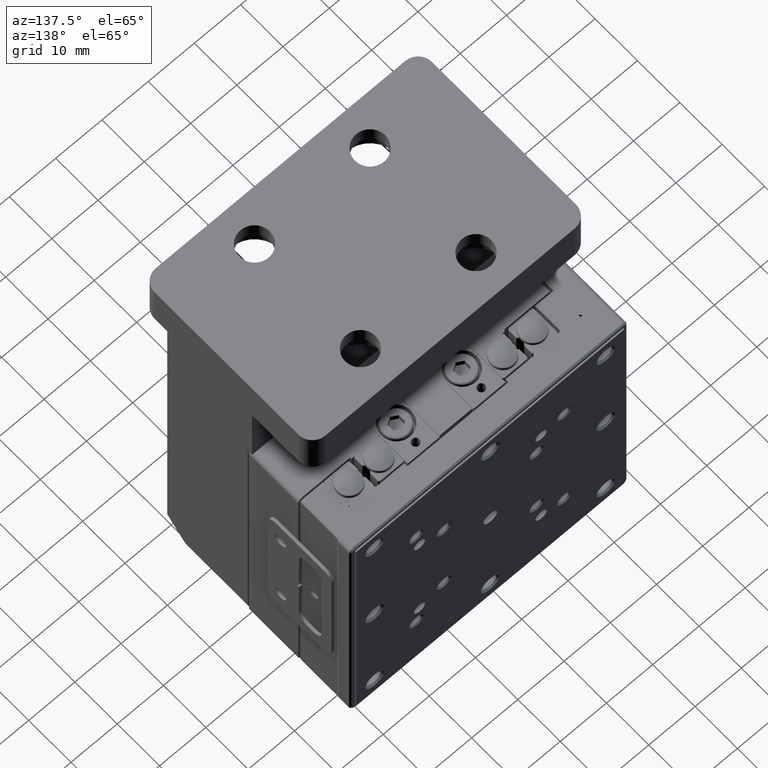
[diagram: clean part render]
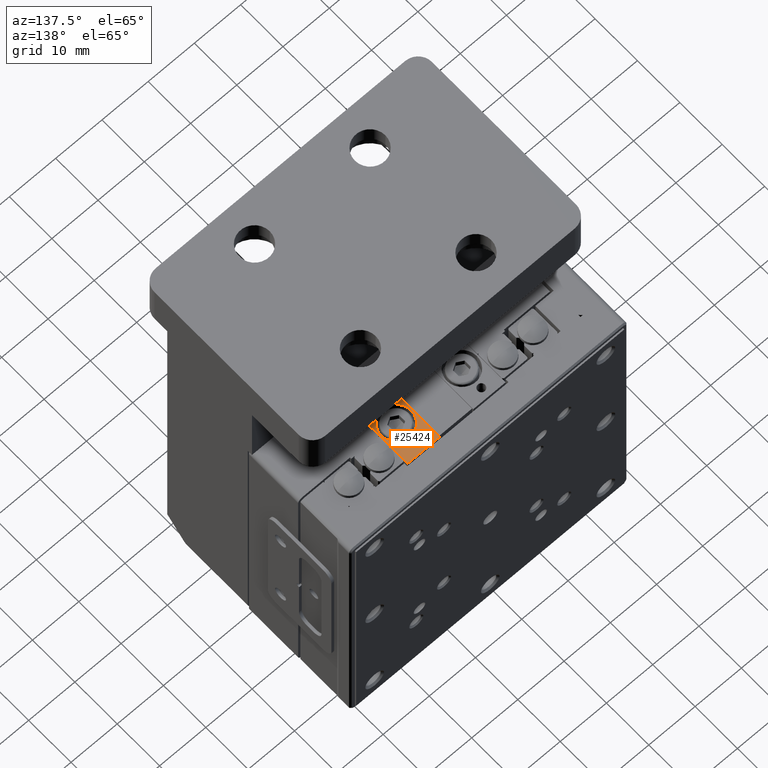
[diagram: same view with one face highlighted and labeled with its STEP entity id]
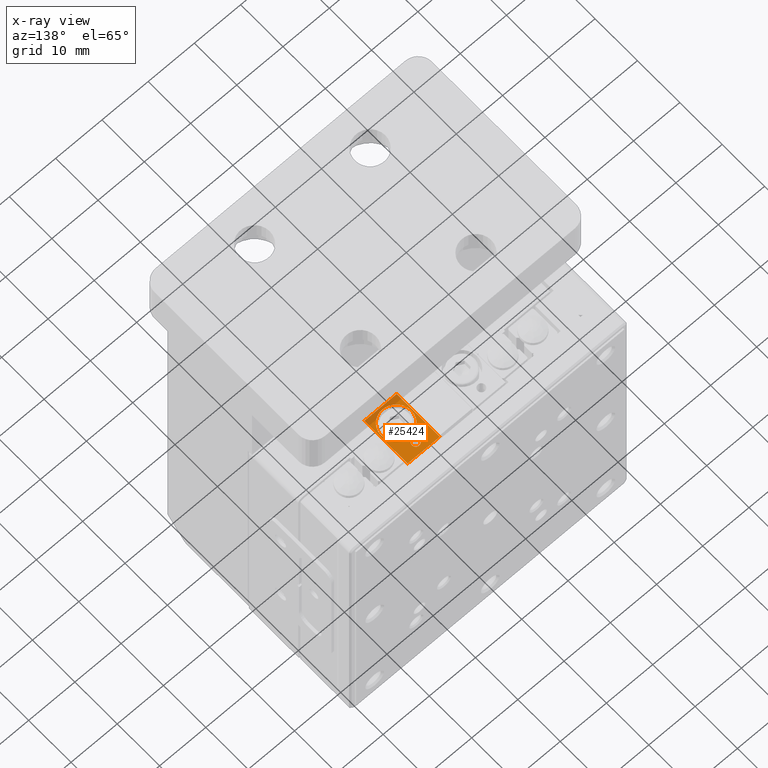
[diagram: x-ray of the same camera — body ghosted, the highlighted face saturated]
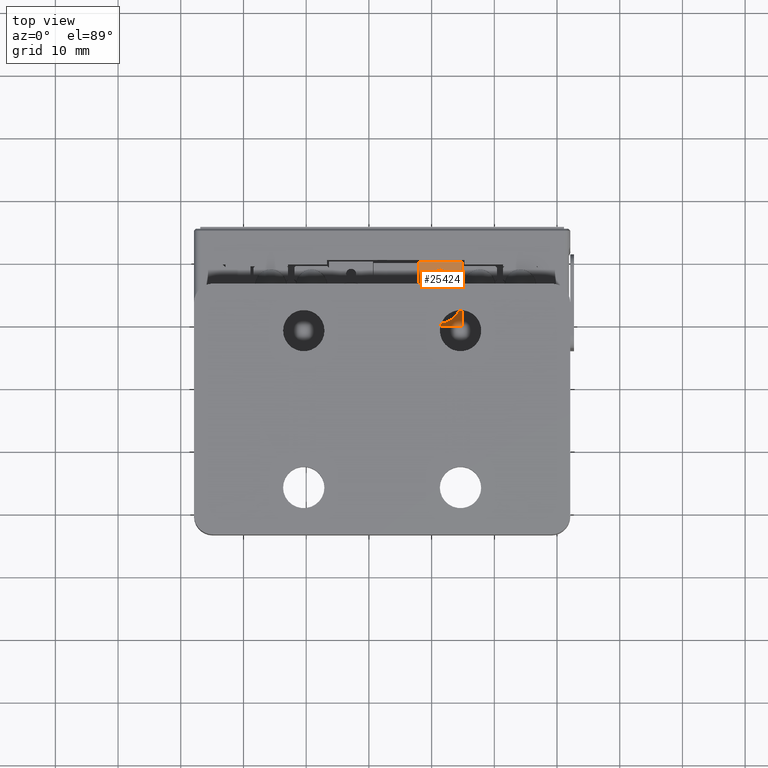
[diagram: same view with one face highlighted and labeled with its STEP entity id]
A machine part, auxiliary view. The second image highlights one B-rep face of the part: STEP entity #25424.
The next image is the same camera in x-ray: the body ghosted, the highlighted face saturated — about 17% of this face is hidden behind the body in this view.
A second angle (top view) of the same face is appended — the face is thin or edge-on in the first view.
In plain terms, the highlighted planar face has unit normal (0, 0, -1).
Its self-contained STEP definition (entity closure, byte-faithful):
#957 = EDGE_CURVE ( 'NONE', #2905, #31434, #11674, .T. ) ;
#1181 = DIRECTION ( 'NONE',  ( 0.000000000000000000, 1.000000000000000000, -0.000000000000000000 ) ) ;
#1366 = DIRECTION ( 'NONE',  ( -1.000000000000000000, 0.000000000000000000, 0.000000000000000000 ) ) ;
#1952 = DIRECTION ( 'NONE',  ( 0.000000000000000000, 0.000000000000000000, 1.000000000000000000 ) ) ;
#2135 = DIRECTION ( 'NONE',  ( -1.000000000000000000, 0.000000000000000000, 0.000000000000000000 ) ) ;
#2601 = EDGE_CURVE ( 'NONE', #9069, #2905, #25477, .T. ) ;
#2905 = VERTEX_POINT ( 'NONE', #23818 ) ;
#3729 = DIRECTION ( 'NONE',  ( -1.000000000000000000, 0.000000000000000000, -0.000000000000000000 ) ) ;
#3902 = AXIS2_PLACEMENT_3D ( 'NONE', #17539, #28642, #3729 ) ;
#4138 = EDGE_CURVE ( 'NONE', #31434, #20929, #4784, .T. ) ;
#4567 = CIRCLE ( 'NONE', #18586, 0.8000000000000003775 ) ;
#4784 = LINE ( 'NONE', #32438, #29061 ) ;
#5812 = DIRECTION ( 'NONE',  ( -0.000000000000000000, -0.000000000000000000, 1.000000000000000000 ) ) ;
#5885 = DIRECTION ( 'NONE',  ( 0.000000000000000000, -1.000000000000000000, -0.000000000000000000 ) ) ;
#6281 = PLANE ( 'NONE',  #3902 ) ;
#6453 = FACE_BOUND ( 'NONE', #13323, .T. ) ;
#7932 = CARTESIAN_POINT ( 'NONE',  ( 8.108002419351368673, 2.774186781755696884, 90.00000000000162004 ) ) ;
#9069 = VERTEX_POINT ( 'NONE', #18356 ) ;
#9372 = CARTESIAN_POINT ( 'NONE',  ( 11.35800241935137045, 7.374186781755693865, 90.00000000000162004 ) ) ;
#11561 = ORIENTED_EDGE ( 'NONE', *, *, #34798, .F. ) ;
#11581 = VERTEX_POINT ( 'NONE', #21320 ) ;
#11674 = LINE ( 'NONE', #22432, #35583 ) ;
#12876 = ORIENTED_EDGE ( 'NONE', *, *, #19967, .F. ) ;
#13323 = EDGE_LOOP ( 'NONE', ( #17564, #11561 ) ) ;
#14164 = DIRECTION ( 'NONE',  ( 1.000000000000000000, 0.000000000000000000, 0.000000000000000000 ) ) ;
#14251 = ORIENTED_EDGE ( 'NONE', *, *, #30486, .F. ) ;
#15377 = CIRCLE ( 'NONE', #20033, 0.8000000000000003775 ) ;
#15859 = VERTEX_POINT ( 'NONE', #7932 ) ;
#17539 = CARTESIAN_POINT ( 'NONE',  ( 11.35800241935137045, 4.174186781755695463, 90.00000000000162004 ) ) ;
#17564 = ORIENTED_EDGE ( 'NONE', *, *, #32721, .F. ) ;
#17907 = FACE_BOUND ( 'NONE', #27000, .T. ) ;
#17921 = LINE ( 'NONE', #28837, #33061 ) ;
#18356 = CARTESIAN_POINT ( 'NONE',  ( 14.85800241935136867, 9.274186781755693332, 90.00000000000162004 ) ) ;
#18586 = AXIS2_PLACEMENT_3D ( 'NONE', #21775, #1952, #2135 ) ;
#18643 = VERTEX_POINT ( 'NONE', #26675 ) ;
#18974 = DIRECTION ( 'NONE',  ( 1.000000000000000000, 0.000000000000000000, -0.000000000000000000 ) ) ;
#19304 = CARTESIAN_POINT ( 'NONE',  ( 14.85800241935136867, -0.9258132182443038483, 90.00000000000162004 ) ) ;
#19421 = VECTOR ( 'NONE', #33496, 1000.000000000000000 ) ;
#19967 = EDGE_CURVE ( 'NONE', #22669, #11581, #4567, .T. ) ;
#20033 = AXIS2_PLACEMENT_3D ( 'NONE', #9372, #20469, #1366 ) ;
#20258 = EDGE_CURVE ( 'NONE', #20929, #9069, #17921, .T. ) ;
#20469 = DIRECTION ( 'NONE',  ( 0.000000000000000000, 0.000000000000000000, 1.000000000000000000 ) ) ;
#20929 = VERTEX_POINT ( 'NONE', #19304 ) ;
#21320 = CARTESIAN_POINT ( 'NONE',  ( 10.55800241935136974, 7.374186781755693865, 90.00000000000162004 ) ) ;
#21754 = AXIS2_PLACEMENT_3D ( 'NONE', #25445, #5812, #14164 ) ;
#21775 = CARTESIAN_POINT ( 'NONE',  ( 11.35800241935137045, 7.374186781755693865, 90.00000000000162004 ) ) ;
#22401 = ORIENTED_EDGE ( 'NONE', *, *, #4138, .T. ) ;
#22417 = DIRECTION ( 'NONE',  ( 1.000000000000000000, 0.000000000000000000, 0.000000000000000000 ) ) ;
#22432 = CARTESIAN_POINT ( 'NONE',  ( 7.858002419351368673, -0.9258132182443038483, 90.00000000000162004 ) ) ;
#22669 = VERTEX_POINT ( 'NONE', #30842 ) ;
#23135 = CARTESIAN_POINT ( 'NONE',  ( 11.35800241935137045, 2.774186781755696440, 90.00000000000162004 ) ) ;
#23818 = CARTESIAN_POINT ( 'NONE',  ( 7.858002419351368673, 9.274186781755693332, 90.00000000000162004 ) ) ;
#24497 = ORIENTED_EDGE ( 'NONE', *, *, #2601, .T. ) ;
#25424 = ADVANCED_FACE ( 'NONE', ( #17907, #34623, #6453 ), #6281, .F. ) ;
#25445 = CARTESIAN_POINT ( 'NONE',  ( 11.35800241935137045, 2.774186781755696440, 90.00000000000162004 ) ) ;
#25477 = LINE ( 'NONE', #33835, #19421 ) ;
#26675 = CARTESIAN_POINT ( 'NONE',  ( 14.60800241935137223, 2.774186781755696440, 90.00000000000162004 ) ) ;
#26855 = AXIS2_PLACEMENT_3D ( 'NONE', #23135, #31130, #22417 ) ;
#27000 = EDGE_LOOP ( 'NONE', ( #14251, #12876 ) ) ;
#28147 = ORIENTED_EDGE ( 'NONE', *, *, #20258, .T. ) ;
#28621 = ORIENTED_EDGE ( 'NONE', *, *, #957, .T. ) ;
#28642 = DIRECTION ( 'NONE',  ( 0.000000000000000000, 0.000000000000000000, -1.000000000000000000 ) ) ;
#28837 = CARTESIAN_POINT ( 'NONE',  ( 14.85800241935136867, -0.9258132182443038483, 90.00000000000162004 ) ) ;
#29061 = VECTOR ( 'NONE', #18974, 1000.000000000000000 ) ;
#29965 = CARTESIAN_POINT ( 'NONE',  ( 7.858002419351368673, -0.9258132182443038483, 90.00000000000162004 ) ) ;
#30486 = EDGE_CURVE ( 'NONE', #11581, #22669, #15377, .T. ) ;
#30842 = CARTESIAN_POINT ( 'NONE',  ( 12.15800241935137116, 7.374186781755693865, 90.00000000000162004 ) ) ;
#31130 = DIRECTION ( 'NONE',  ( -0.000000000000000000, -0.000000000000000000, 1.000000000000000000 ) ) ;
#31434 = VERTEX_POINT ( 'NONE', #29965 ) ;
#32099 = CIRCLE ( 'NONE', #26855, 3.250000000000001332 ) ;
#32438 = CARTESIAN_POINT ( 'NONE',  ( 7.858002419351368673, -0.9258132182443038483, 90.00000000000162004 ) ) ;
#32721 = EDGE_CURVE ( 'NONE', #18643, #15859, #32789, .T. ) ;
#32789 = CIRCLE ( 'NONE', #21754, 3.250000000000001332 ) ;
#33061 = VECTOR ( 'NONE', #1181, 1000.000000000000000 ) ;
#33496 = DIRECTION ( 'NONE',  ( -1.000000000000000000, -0.000000000000000000, -0.000000000000000000 ) ) ;
#33835 = CARTESIAN_POINT ( 'NONE',  ( 7.858002419351368673, 9.274186781755693332, 90.00000000000162004 ) ) ;
#34623 = FACE_OUTER_BOUND ( 'NONE', #35319, .T. ) ;
#34798 = EDGE_CURVE ( 'NONE', #15859, #18643, #32099, .T. ) ;
#35319 = EDGE_LOOP ( 'NONE', ( #22401, #28147, #24497, #28621 ) ) ;
#35583 = VECTOR ( 'NONE', #5885, 1000.000000000000000 ) ;